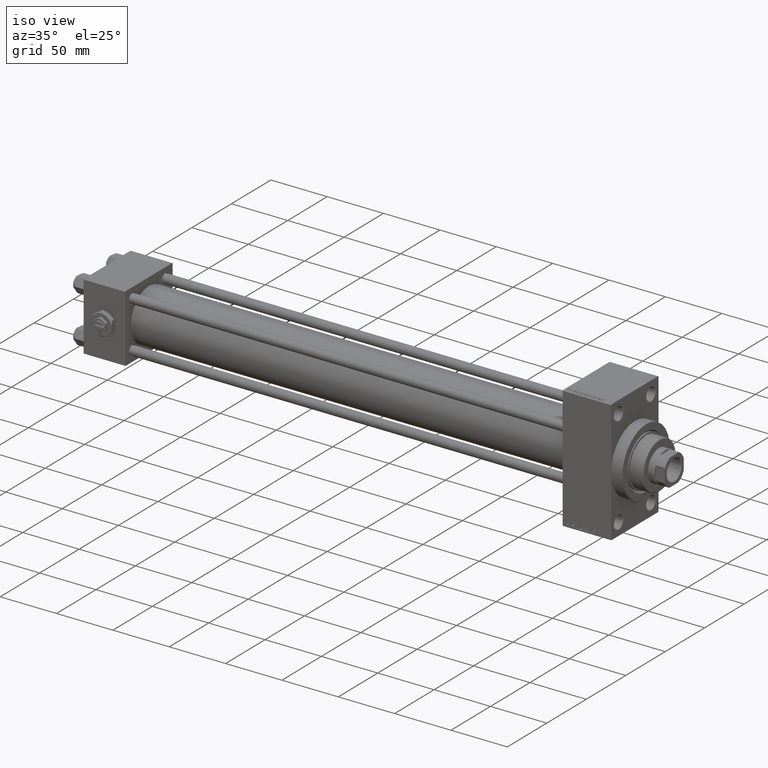
[diagram: clean part render]
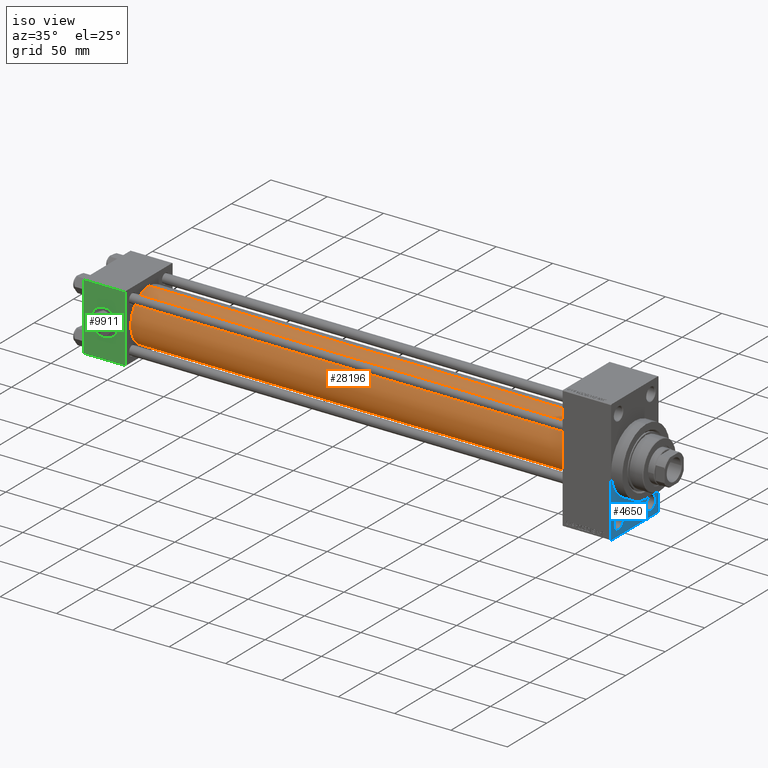
[diagram: same view with three faces highlighted in distinct colors, each labeled with its STEP entity id]
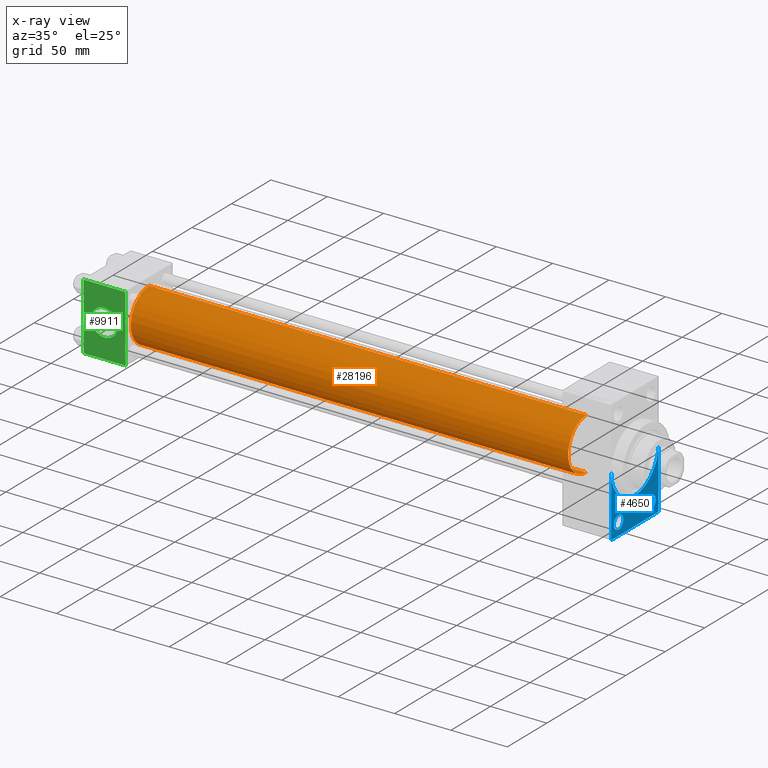
[diagram: x-ray of the same camera — body ghosted, the three highlighted faces saturated]
A machine part, iso view with three faces highlighted in distinct colors.
The next image is the same camera in x-ray (body ghosted, the three faces saturated) — at least one of them is partly hidden behind the body in this view.
Their STEP definitions:

[orange] entity #28196 — the highlighted cylindrical surface (edge-blend (fillet) strip) has radius 23 mm, axis along (-1, -0, -0).
#464 = ORIENTED_EDGE ( 'NONE', *, *, #10805, .F. ) ;
#855 = DIRECTION ( 'NONE',  ( 1.000000000000000000, 0.000000000000000000, 0.000000000000000000 ) ) ;
#1210 = DIRECTION ( 'NONE',  ( -1.000000000000000000, -0.000000000000000000, -0.000000000000000000 ) ) ;
#1539 = VERTEX_POINT ( 'NONE', #39953 ) ;
#5897 = CARTESIAN_POINT ( 'NONE',  ( 425.0000000000000000, 2.146024240737012665E-16, -23.00000000000000000 ) ) ;
#7517 = AXIS2_PLACEMENT_3D ( 'NONE', #46698, #855, #39028 ) ;
#7752 = EDGE_CURVE ( 'NONE', #1539, #48483, #23634, .T. ) ;
#9964 = LINE ( 'NONE', #16417, #30172 ) ;
#9991 = AXIS2_PLACEMENT_3D ( 'NONE', #36610, #36851, #17758 ) ;
#10805 = EDGE_CURVE ( 'NONE', #1539, #45378, #48656, .T. ) ;
#10998 = ORIENTED_EDGE ( 'NONE', *, *, #20782, .T. ) ;
#12583 = FACE_OUTER_BOUND ( 'NONE', #17868, .T. ) ;
#14332 = ORIENTED_EDGE ( 'NONE', *, *, #7752, .T. ) ;
#16417 = CARTESIAN_POINT ( 'NONE',  ( 425.0000000000000000, 2.146024240737012665E-16, -23.00000000000000000 ) ) ;
#16566 = CYLINDRICAL_SURFACE ( 'NONE', #29968, 23.00000000000000000 ) ;
#17755 = VERTEX_POINT ( 'NONE', #39208 ) ;
#17758 = DIRECTION ( 'NONE',  ( 0.000000000000000000, 0.000000000000000000, 1.000000000000000000 ) ) ;
#17868 = EDGE_LOOP ( 'NONE', ( #41688, #464, #14332, #10998 ) ) ;
#20631 = DIRECTION ( 'NONE',  ( -1.000000000000000000, -0.000000000000000000, -0.000000000000000000 ) ) ;
#20782 = EDGE_CURVE ( 'NONE', #48483, #17755, #47219, .T. ) ;
#23634 = LINE ( 'NONE', #31060, #34342 ) ;
#24019 = DIRECTION ( 'NONE',  ( 0.000000000000000000, 0.000000000000000000, 1.000000000000000000 ) ) ;
#24749 = CARTESIAN_POINT ( 'NONE',  ( 425.0000000000000000, -2.602085213965210642E-15, 0.000000000000000000 ) ) ;
#28196 = ADVANCED_FACE ( 'NONE', ( #12583 ), #16566, .T. ) ;
#29968 = AXIS2_PLACEMENT_3D ( 'NONE', #24749, #1210, #24019 ) ;
#30172 = VECTOR ( 'NONE', #20631, 1000.000000000000000 ) ;
#31060 = CARTESIAN_POINT ( 'NONE',  ( 425.0000000000000000, -2.602085213965210642E-15, 23.00000000000000000 ) ) ;
#34342 = VECTOR ( 'NONE', #38739, 1000.000000000000000 ) ;
#34593 = EDGE_CURVE ( 'NONE', #45378, #17755, #9964, .T. ) ;
#36610 = CARTESIAN_POINT ( 'NONE',  ( 36.99999999999997868, -2.602085213965210642E-15, 0.000000000000000000 ) ) ;
#36851 = DIRECTION ( 'NONE',  ( 1.000000000000000000, -0.000000000000000000, 0.000000000000000000 ) ) ;
#37179 = CARTESIAN_POINT ( 'NONE',  ( 36.99999999999997868, -2.602085213965210642E-15, 23.00000000000000000 ) ) ;
#38739 = DIRECTION ( 'NONE',  ( -1.000000000000000000, -0.000000000000000000, -0.000000000000000000 ) ) ;
#39028 = DIRECTION ( 'NONE',  ( 0.000000000000000000, 0.000000000000000000, -1.000000000000000000 ) ) ;
#39208 = CARTESIAN_POINT ( 'NONE',  ( 36.99999999999997868, 2.146024240737012665E-16, -23.00000000000000000 ) ) ;
#39953 = CARTESIAN_POINT ( 'NONE',  ( 425.0000000000000000, -2.602085213965210642E-15, 23.00000000000000000 ) ) ;
#41688 = ORIENTED_EDGE ( 'NONE', *, *, #34593, .F. ) ;
#45378 = VERTEX_POINT ( 'NONE', #5897 ) ;
#46698 = CARTESIAN_POINT ( 'NONE',  ( 425.0000000000000000, -2.602085213965210642E-15, 0.000000000000000000 ) ) ;
#47219 = CIRCLE ( 'NONE', #9991, 23.00000000000000000 ) ;
#48483 = VERTEX_POINT ( 'NONE', #37179 ) ;
#48656 = CIRCLE ( 'NONE', #7517, 23.00000000000000000 ) ;

[blue] entity #4650 — the highlighted planar face has unit normal (-1, 0, 0).
#85 = CARTESIAN_POINT ( 'NONE',  ( 468.0000000000000000, -30.00000000000000000, -53.99999999999998579 ) ) ;
#814 = ORIENTED_EDGE ( 'NONE', *, *, #12928, .F. ) ;
#939 = VECTOR ( 'NONE', #12799, 1000.000000000000000 ) ;
#1080 = EDGE_CURVE ( 'NONE', #30921, #29184, #27453, .T. ) ;
#1115 = CARTESIAN_POINT ( 'NONE',  ( 468.0000000000000000, 20.50000000000000000, -37.50000000000004974 ) ) ;
#1203 = DIRECTION ( 'NONE',  ( -1.000000000000000000, 0.000000000000000000, -0.000000000000000000 ) ) ;
#1691 = LINE ( 'NONE', #44054, #48440 ) ;
#1816 = AXIS2_PLACEMENT_3D ( 'NONE', #37749, #3779, #18900 ) ;
#1943 = FACE_BOUND ( 'NONE', #30109, .T. ) ;
#2046 = LINE ( 'NONE', #13925, #22404 ) ;
#3624 = AXIS2_PLACEMENT_3D ( 'NONE', #16034, #8837, #45766 ) ;
#3779 = DIRECTION ( 'NONE',  ( -1.000000000000000000, 0.000000000000000000, -0.000000000000000000 ) ) ;
#3890 = CIRCLE ( 'NONE', #12580, 5.999999999999950262 ) ;
#4650 = ADVANCED_FACE ( 'NONE', ( #1943, #4911, #47042 ), #27709, .F. ) ;
#4911 = FACE_BOUND ( 'NONE', #9148, .T. ) ;
#5358 = ORIENTED_EDGE ( 'NONE', *, *, #6000, .F. ) ;
#6000 = EDGE_CURVE ( 'NONE', #18540, #29184, #2046, .T. ) ;
#6423 = CARTESIAN_POINT ( 'NONE',  ( 468.0000000000000000, -30.00000000000000000, 0.000000000000000000 ) ) ;
#7802 = EDGE_LOOP ( 'NONE', ( #47208, #48816, #5358, #20674, #21707, #814, #28974 ) ) ;
#8518 = CARTESIAN_POINT ( 'NONE',  ( 468.0000000000000000, -20.50000000000000000, -43.50000000000000000 ) ) ;
#8837 = DIRECTION ( 'NONE',  ( -1.000000000000000000, 0.000000000000000000, -0.000000000000000000 ) ) ;
#9148 = EDGE_LOOP ( 'NONE', ( #48352, #37142 ) ) ;
#9230 = DIRECTION ( 'NONE',  ( 0.000000000000000000, 0.000000000000000000, 1.000000000000000000 ) ) ;
#9377 = CARTESIAN_POINT ( 'NONE',  ( 468.0000000000000000, 0.000000000000000000, 0.000000000000000000 ) ) ;
#9827 = CARTESIAN_POINT ( 'NONE',  ( 468.0000000000000000, -20.50000000000000000, -37.50000000000004974 ) ) ;
#10270 = CARTESIAN_POINT ( 'NONE',  ( 468.0000000000000000, 30.00000000000000000, 0.000000000000000000 ) ) ;
#10504 = CARTESIAN_POINT ( 'NONE',  ( 468.0000000000000000, -30.00000000000000000, 54.50000000000000000 ) ) ;
#10621 = VERTEX_POINT ( 'NONE', #9827 ) ;
#12461 = EDGE_CURVE ( 'NONE', #10621, #33993, #17082, .T. ) ;
#12570 = DIRECTION ( 'NONE',  ( -0.000000000000000000, 0.000000000000000000, 1.000000000000000000 ) ) ;
#12580 = AXIS2_PLACEMENT_3D ( 'NONE', #24128, #20642, #9230 ) ;
#12799 = DIRECTION ( 'NONE',  ( 0.000000000000000000, 0.7071067811864960584, -0.7071067811865990871 ) ) ;
#12928 = EDGE_CURVE ( 'NONE', #44359, #45841, #17892, .T. ) ;
#13898 = DIRECTION ( 'NONE',  ( 1.000000000000000000, 0.000000000000000000, 0.000000000000000000 ) ) ;
#13925 = CARTESIAN_POINT ( 'NONE',  ( 468.0000000000000000, 29.99999999999999645, -54.49999999999999289 ) ) ;
#14464 = DIRECTION ( 'NONE',  ( 0.000000000000000000, 0.000000000000000000, -1.000000000000000000 ) ) ;
#15439 = CARTESIAN_POINT ( 'NONE',  ( 468.0000000000000000, 29.49999999999993960, -54.49999999999999289 ) ) ;
#16034 = CARTESIAN_POINT ( 'NONE',  ( 468.0000000000000000, 20.50000000000000000, -43.50000000000000000 ) ) ;
#17082 = CIRCLE ( 'NONE', #25790, 5.999999999999950262 ) ;
#17892 = CIRCLE ( 'NONE', #45560, 30.00000000000000000 ) ;
#18332 = CARTESIAN_POINT ( 'NONE',  ( 468.0000000000000000, 0.000000000000000000, 0.000000000000000000 ) ) ;
#18540 = VERTEX_POINT ( 'NONE', #15439 ) ;
#18900 = DIRECTION ( 'NONE',  ( 0.000000000000000000, 0.000000000000000000, 1.000000000000000000 ) ) ;
#18936 = VERTEX_POINT ( 'NONE', #26008 ) ;
#19971 = AXIS2_PLACEMENT_3D ( 'NONE', #27958, #1203, #12570 ) ;
#20642 = DIRECTION ( 'NONE',  ( -1.000000000000000000, 0.000000000000000000, -0.000000000000000000 ) ) ;
#20674 = ORIENTED_EDGE ( 'NONE', *, *, #47904, .T. ) ;
#20769 = LINE ( 'NONE', #43548, #31752 ) ;
#21707 = ORIENTED_EDGE ( 'NONE', *, *, #46378, .F. ) ;
#22404 = VECTOR ( 'NONE', #36486, 1000.000000000000000 ) ;
#23749 = VERTEX_POINT ( 'NONE', #6423 ) ;
#23860 = VERTEX_POINT ( 'NONE', #38837 ) ;
#24128 = CARTESIAN_POINT ( 'NONE',  ( 468.0000000000000000, 20.50000000000000000, -43.50000000000000000 ) ) ;
#24520 = DIRECTION ( 'NONE',  ( 1.000000000000000000, 0.000000000000000000, 0.000000000000000000 ) ) ;
#25790 = AXIS2_PLACEMENT_3D ( 'NONE', #8518, #31075, #38514 ) ;
#26008 = CARTESIAN_POINT ( 'NONE',  ( 468.0000000000000000, 29.99999999999999645, -53.99999999999993605 ) ) ;
#26363 = EDGE_CURVE ( 'NONE', #42591, #23860, #3890, .T. ) ;
#27453 = LINE ( 'NONE', #42556, #939 ) ;
#27709 = PLANE ( 'NONE',  #19971 ) ;
#27958 = CARTESIAN_POINT ( 'NONE',  ( 468.0000000000000000, 0.000000000000000000, 0.000000000000000000 ) ) ;
#28671 = CARTESIAN_POINT ( 'NONE',  ( 468.0000000000000000, -20.50000000000000000, -49.49999999999995026 ) ) ;
#28974 = ORIENTED_EDGE ( 'NONE', *, *, #33604, .F. ) ;
#29184 = VERTEX_POINT ( 'NONE', #46867 ) ;
#29740 = CIRCLE ( 'NONE', #3624, 5.999999999999950262 ) ;
#30109 = EDGE_LOOP ( 'NONE', ( #45805, #34745 ) ) ;
#30499 = CARTESIAN_POINT ( 'NONE',  ( 468.0000000000000000, 3.673940397442059178E-15, -30.00000000000000000 ) ) ;
#30921 = VERTEX_POINT ( 'NONE', #85 ) ;
#31075 = DIRECTION ( 'NONE',  ( -1.000000000000000000, 0.000000000000000000, -0.000000000000000000 ) ) ;
#31752 = VECTOR ( 'NONE', #35895, 1000.000000000000000 ) ;
#33302 = CIRCLE ( 'NONE', #46766, 30.00000000000000000 ) ;
#33604 = EDGE_CURVE ( 'NONE', #23749, #44359, #33302, .T. ) ;
#33993 = VERTEX_POINT ( 'NONE', #28671 ) ;
#34418 = EDGE_CURVE ( 'NONE', #23749, #30921, #37277, .T. ) ;
#34745 = ORIENTED_EDGE ( 'NONE', *, *, #12461, .T. ) ;
#35895 = DIRECTION ( 'NONE',  ( 0.000000000000000000, 0.000000000000000000, -1.000000000000000000 ) ) ;
#36486 = DIRECTION ( 'NONE',  ( 0.000000000000000000, -1.000000000000000000, -1.156482317317871478E-16 ) ) ;
#37142 = ORIENTED_EDGE ( 'NONE', *, *, #26363, .T. ) ;
#37277 = LINE ( 'NONE', #10504, #40465 ) ;
#37749 = CARTESIAN_POINT ( 'NONE',  ( 468.0000000000000000, -20.50000000000000000, -43.50000000000000000 ) ) ;
#38052 = EDGE_CURVE ( 'NONE', #33993, #10621, #47698, .T. ) ;
#38514 = DIRECTION ( 'NONE',  ( 0.000000000000000000, 0.000000000000000000, 1.000000000000000000 ) ) ;
#38837 = CARTESIAN_POINT ( 'NONE',  ( 468.0000000000000000, 20.50000000000000000, -49.49999999999995026 ) ) ;
#39874 = DIRECTION ( 'NONE',  ( 0.000000000000000000, 0.000000000000000000, -1.000000000000000000 ) ) ;
#40465 = VECTOR ( 'NONE', #14464, 1000.000000000000000 ) ;
#42242 = EDGE_CURVE ( 'NONE', #23860, #42591, #29740, .T. ) ;
#42556 = CARTESIAN_POINT ( 'NONE',  ( 468.0000000000000000, -29.50000000000005684, -54.50000000000000000 ) ) ;
#42591 = VERTEX_POINT ( 'NONE', #1115 ) ;
#43548 = CARTESIAN_POINT ( 'NONE',  ( 468.0000000000000000, 29.99999999999999645, 54.49999999999999289 ) ) ;
#44054 = CARTESIAN_POINT ( 'NONE',  ( 468.0000000000000000, 29.99999999999999645, -53.99999999999993605 ) ) ;
#44290 = DIRECTION ( 'NONE',  ( -0.000000000000000000, 0.7071067811865474617, 0.7071067811865474617 ) ) ;
#44359 = VERTEX_POINT ( 'NONE', #30499 ) ;
#45560 = AXIS2_PLACEMENT_3D ( 'NONE', #18332, #13898, #47854 ) ;
#45766 = DIRECTION ( 'NONE',  ( 0.000000000000000000, 0.000000000000000000, 1.000000000000000000 ) ) ;
#45805 = ORIENTED_EDGE ( 'NONE', *, *, #38052, .T. ) ;
#45841 = VERTEX_POINT ( 'NONE', #10270 ) ;
#46378 = EDGE_CURVE ( 'NONE', #45841, #18936, #20769, .T. ) ;
#46766 = AXIS2_PLACEMENT_3D ( 'NONE', #9377, #24520, #39874 ) ;
#46867 = CARTESIAN_POINT ( 'NONE',  ( 468.0000000000000000, -29.50000000000005684, -54.50000000000000000 ) ) ;
#47042 = FACE_OUTER_BOUND ( 'NONE', #7802, .T. ) ;
#47208 = ORIENTED_EDGE ( 'NONE', *, *, #34418, .T. ) ;
#47698 = CIRCLE ( 'NONE', #1816, 5.999999999999950262 ) ;
#47854 = DIRECTION ( 'NONE',  ( 0.000000000000000000, 0.000000000000000000, -1.000000000000000000 ) ) ;
#47904 = EDGE_CURVE ( 'NONE', #18540, #18936, #1691, .T. ) ;
#48352 = ORIENTED_EDGE ( 'NONE', *, *, #42242, .T. ) ;
#48440 = VECTOR ( 'NONE', #44290, 1000.000000000000114 ) ;
#48816 = ORIENTED_EDGE ( 'NONE', *, *, #1080, .T. ) ;

[green] entity #9911 — the highlighted planar face has unit normal (0, 1, 0).
#5 = DIRECTION ( 'NONE',  ( 1.000000000000000000, 0.000000000000000000, 0.000000000000000000 ) ) ;
#969 = ORIENTED_EDGE ( 'NONE', *, *, #26642, .T. ) ;
#1901 = VERTEX_POINT ( 'NONE', #3435 ) ;
#2704 = DIRECTION ( 'NONE',  ( 0.000000000000000000, 0.000000000000000000, -1.000000000000000000 ) ) ;
#3435 = CARTESIAN_POINT ( 'NONE',  ( 18.50000000000000000, -30.00000000000000000, 12.00000000000000178 ) ) ;
#4317 = VECTOR ( 'NONE', #43258, 1000.000000000000000 ) ;
#4417 = EDGE_CURVE ( 'NONE', #21423, #1901, #35802, .T. ) ;
#6177 = VERTEX_POINT ( 'NONE', #46832 ) ;
#6414 = LINE ( 'NONE', #36663, #13924 ) ;
#7310 = FACE_OUTER_BOUND ( 'NONE', #43373, .T. ) ;
#9214 = CARTESIAN_POINT ( 'NONE',  ( 18.50000000000000000, -30.00000000000000000, -12.00000000000000178 ) ) ;
#9911 = ADVANCED_FACE ( 'NONE', ( #37800, #7310 ), #34070, .F. ) ;
#11482 = CARTESIAN_POINT ( 'NONE',  ( 18.50000000000000000, -30.00000000000000000, 0.000000000000000000 ) ) ;
#11948 = DIRECTION ( 'NONE',  ( 0.000000000000000000, 0.000000000000000000, -1.000000000000000000 ) ) ;
#13609 = CIRCLE ( 'NONE', #33386, 12.00000000000000178 ) ;
#13688 = ORIENTED_EDGE ( 'NONE', *, *, #21563, .T. ) ;
#13924 = VECTOR ( 'NONE', #2704, 1000.000000000000000 ) ;
#16296 = EDGE_CURVE ( 'NONE', #26463, #6177, #28143, .T. ) ;
#17112 = DIRECTION ( 'NONE',  ( 0.000000000000000000, 0.000000000000000000, -1.000000000000000000 ) ) ;
#17183 = VECTOR ( 'NONE', #5, 1000.000000000000000 ) ;
#18386 = CARTESIAN_POINT ( 'NONE',  ( 0.000000000000000000, -30.00000000000000000, 29.49999999999999289 ) ) ;
#19047 = ORIENTED_EDGE ( 'NONE', *, *, #43922, .F. ) ;
#19375 = EDGE_CURVE ( 'NONE', #46352, #42674, #6414, .T. ) ;
#21423 = VERTEX_POINT ( 'NONE', #9214 ) ;
#21511 = LINE ( 'NONE', #24741, #45796 ) ;
#21563 = EDGE_CURVE ( 'NONE', #6177, #42674, #33967, .T. ) ;
#23340 = AXIS2_PLACEMENT_3D ( 'NONE', #25920, #37073, #45210 ) ;
#24741 = CARTESIAN_POINT ( 'NONE',  ( 37.00000000000000000, -30.00000000000000000, 29.49999999999999289 ) ) ;
#25920 = CARTESIAN_POINT ( 'NONE',  ( 37.00000000000000000, -30.00000000000000000, 29.99999999999999289 ) ) ;
#26296 = CARTESIAN_POINT ( 'NONE',  ( 37.00000000000000000, -30.00000000000000000, -29.50000000000001776 ) ) ;
#26463 = VERTEX_POINT ( 'NONE', #18386 ) ;
#26642 = EDGE_CURVE ( 'NONE', #46352, #26463, #21511, .T. ) ;
#27284 = CARTESIAN_POINT ( 'NONE',  ( 18.50000000000000000, -30.00000000000000000, 0.000000000000000000 ) ) ;
#27634 = EDGE_LOOP ( 'NONE', ( #45648, #19047 ) ) ;
#28143 = LINE ( 'NONE', #39305, #4317 ) ;
#28199 = DIRECTION ( 'NONE',  ( -1.000000000000000000, 0.000000000000000000, 0.000000000000000000 ) ) ;
#29512 = ORIENTED_EDGE ( 'NONE', *, *, #16296, .T. ) ;
#33386 = AXIS2_PLACEMENT_3D ( 'NONE', #11482, #46155, #11948 ) ;
#33967 = LINE ( 'NONE', #26296, #17183 ) ;
#34070 = PLANE ( 'NONE',  #23340 ) ;
#35802 = CIRCLE ( 'NONE', #48449, 12.00000000000000178 ) ;
#36663 = CARTESIAN_POINT ( 'NONE',  ( 37.00000000000000000, -30.00000000000000000, 29.99999999999999289 ) ) ;
#37073 = DIRECTION ( 'NONE',  ( -0.000000000000000000, 1.000000000000000000, 0.000000000000000000 ) ) ;
#37800 = FACE_BOUND ( 'NONE', #27634, .T. ) ;
#38288 = CARTESIAN_POINT ( 'NONE',  ( 37.00000000000000000, -30.00000000000000000, -29.50000000000001776 ) ) ;
#39305 = CARTESIAN_POINT ( 'NONE',  ( 0.000000000000000000, -30.00000000000000000, 29.99999999999999289 ) ) ;
#39846 = CARTESIAN_POINT ( 'NONE',  ( 37.00000000000000000, -30.00000000000000000, 29.49999999999999289 ) ) ;
#42385 = DIRECTION ( 'NONE',  ( 0.000000000000000000, -1.000000000000000000, -8.673617379884036705E-17 ) ) ;
#42674 = VERTEX_POINT ( 'NONE', #38288 ) ;
#43258 = DIRECTION ( 'NONE',  ( 0.000000000000000000, 0.000000000000000000, -1.000000000000000000 ) ) ;
#43373 = EDGE_LOOP ( 'NONE', ( #29512, #13688, #48749, #969 ) ) ;
#43922 = EDGE_CURVE ( 'NONE', #1901, #21423, #13609, .T. ) ;
#45210 = DIRECTION ( 'NONE',  ( 0.000000000000000000, -0.000000000000000000, 1.000000000000000000 ) ) ;
#45648 = ORIENTED_EDGE ( 'NONE', *, *, #4417, .F. ) ;
#45796 = VECTOR ( 'NONE', #28199, 1000.000000000000000 ) ;
#46155 = DIRECTION ( 'NONE',  ( 0.000000000000000000, -1.000000000000000000, -8.673617379884036705E-17 ) ) ;
#46352 = VERTEX_POINT ( 'NONE', #39846 ) ;
#46832 = CARTESIAN_POINT ( 'NONE',  ( 0.000000000000000000, -30.00000000000000000, -29.50000000000001776 ) ) ;
#48449 = AXIS2_PLACEMENT_3D ( 'NONE', #27284, #42385, #17112 ) ;
#48749 = ORIENTED_EDGE ( 'NONE', *, *, #19375, .F. ) ;